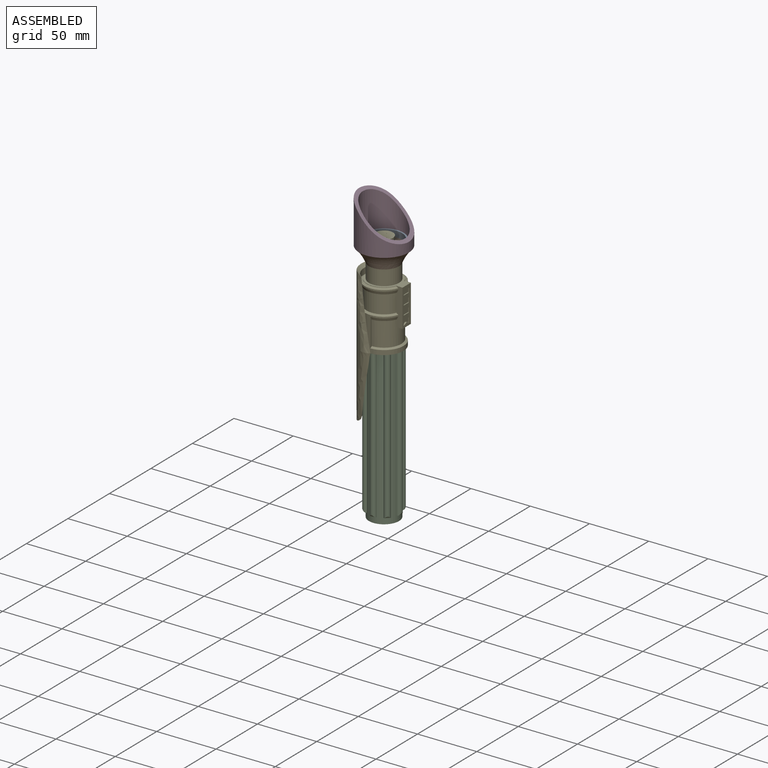
[diagram: assembled view]
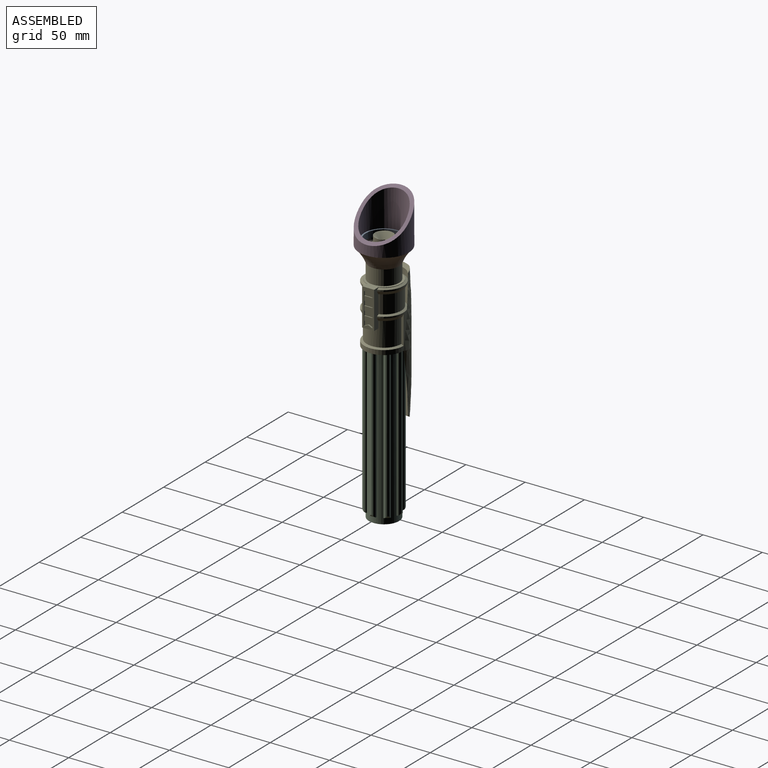
[diagram: assembled view, second angle]
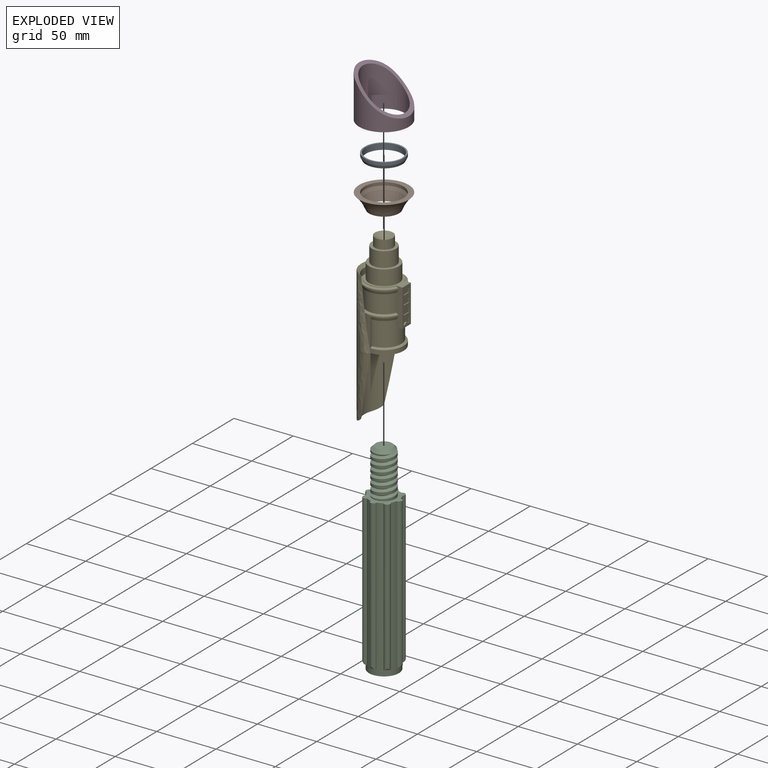
[diagram: exploded view]
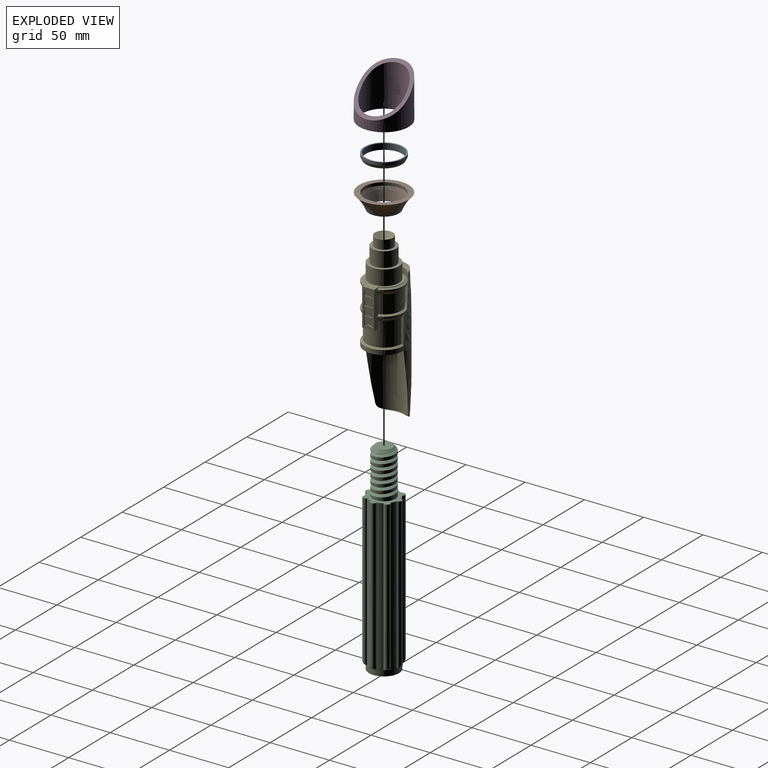
[diagram: exploded view, second angle]
ASSEMBLY  parts=5 mates=4
PART A: 4 faces, bbox 33x33x5.1 mm
  f0: plane 33.02x33.02mm, normal (0,0,1), area 126.7mm2, adj f1,f3
  f1: cylinder r=16.51mm len=33.02mm, axis (0,0,-1), area 263.5mm2, adj f0,f2
  f2: cone r=15.24mm half-angle=26.6deg, axis (0,0,1), area 283.3mm2, adj f1,f3
  f3: cylinder r=15.24mm len=30.48mm, axis (0,0,1), area 486.4mm2, adj f0,f2
PART B: 5 faces, bbox 41.9x83.8x12.7 mm
  f0: cone r=12.7mm half-angle=18.4deg, axis (0,0,1), area 705mm2, adj f1,f4
  f1: bspline ~83.82x41.91mm, area 1568.7mm2, adj f0,f2
  f2: plane 41.91x41.91mm, normal (0,0,1), area 523.2mm2, adj f1,f3
  f3: cylinder r=16.51mm len=33.02mm, axis (0,0,1), area 263.5mm2, adj f2,f4
  f4: cone r=15.24mm half-angle=26.6deg, axis (0,0,1), area 283.3mm2, adj f0,f3
PART C: 57 faces, bbox 30.5x30.5x172 mm
  f0: plane 1.98x1.8mm, normal (0,0,-1), area 0.2mm2, adj f26,f29,f45
  f1: plane 1.98x1.8mm, normal (0,0,-1), area 0.2mm2, adj f26,f30,f45
  f2: plane 2.54x0.26mm, normal (0,0,-1), area 0.2mm2, adj f26,f31,f41
  f3: plane 2.54x0.26mm, normal (0,0,-1), area 0.2mm2, adj f15,f26,f41
  f4: plane 1.98x1.8mm, normal (0,0,-1), area 0.2mm2, adj f16,f26,f43
  f5: plane 1.98x1.8mm, normal (0,0,-1), area 0.2mm2, adj f17,f26,f43
  f6: plane 2.54x0.26mm, normal (0,0,-1), area 0.2mm2, adj f18,f26,f47
  f7: plane 2.54x0.26mm, normal (0,0,-1), area 0.2mm2, adj f19,f26,f47
  f8: plane 1.98x1.8mm, normal (0,0,-1), area 0.2mm2, adj f20,f26,f49
  f9: plane 1.98x1.8mm, normal (0,0,-1), area 0.2mm2, adj f21,f26,f49
  f10: plane 2.54x0.26mm, normal (0,0,-1), area 0.2mm2, adj f22,f26,f51
  f11: plane 2.54x0.26mm, normal (0,0,-1), area 0.2mm2, adj f23,f26,f51
  f12: plane 1.98x1.8mm, normal (0,0,-1), area 0.2mm2, adj f24,f26,f55
  f13: plane 1.98x1.8mm, normal (0,0,-1), area 0.2mm2, adj f25,f26,f55
  f14: plane 2.54x0.26mm, normal (0,0,-1), area 0.2mm2, adj f26,f28,f53
  f15: plane 127x0.26mm, normal (-1,0,0), area 32.6mm2, adj f3,f26,f32,f40
  f16: plane 127x0.18mm, normal (0.71,0.71,0), area 32.6mm2, adj f4,f26,f32,f42
  f17: plane 127x0.18mm, normal (-0.71,-0.71,0), area 32.6mm2, adj f5,f26,f32,f42
  f18: plane 127x0.26mm, normal (0,1,0), area 32.6mm2, adj f6,f26,f32,f46
  f19: plane 127x0.26mm, normal (0,-1,0), area 32.6mm2, adj f7,f26,f32,f46
  f20: plane 127x0.18mm, normal (-0.71,0.71,0), area 32.6mm2, adj f8,f26,f32,f48
  f21: plane 127x0.18mm, normal (0.71,-0.71,0), area 32.6mm2, adj f9,f26,f32,f48
  f22: plane 127x0.26mm, normal (-1,0,0), area 32.6mm2, adj f10,f26,f32,f50
  f23: plane 127x0.26mm, normal (1,0,0), area 32.6mm2, adj f11,f26,f32,f50
  f24: plane 127x0.18mm, normal (-0.71,-0.71,0), area 32.6mm2, adj f12,f26,f32,f54
  f25: plane 127x0.18mm, normal (0.71,0.71,0), area 32.6mm2, adj f13,f26,f32,f54
  f26: cylinder r=12.7mm len=132.08mm, axis (0,0,-1), area 5343.2mm2, adj f0,f1,f2,f3,f4,f5,f6,f7
  f27: plane 127x0.26mm, normal (0,-1,0), area 32.6mm2, adj f26,f32,f33,f52
  f28: plane 127x0.26mm, normal (0,1,0), area 32.6mm2, adj f14,f26,f32,f52
  f29: plane 127x0.18mm, normal (0.71,-0.71,0), area 32.6mm2, adj f0,f26,f32,f44
  f30: plane 127x0.18mm, normal (-0.71,0.71,0), area 32.6mm2, adj f1,f26,f32,f44
  f31: plane 127x0.26mm, normal (1,0,0), area 32.6mm2, adj f2,f26,f32,f40
  f32: plane 30.48x30.48mm, normal (0,0,1), area 306.2mm2, adj f15,f16,f17,f18,f19,f20,f21,f22
  f33: plane 2.54x0.26mm, normal (0,0,-1), area 0.2mm2, adj f26,f27,f53
  f34: cylinder r=9.53mm len=35.56mm, axis (0,0,-1), area 900.3mm2, adj f32,f36,f37,f38,f39
  f35: plane 13.97x13.97mm, normal (0,0,1), area 153.3mm2, adj f36
  f36: cone r=6.99mm half-angle=45deg, axis (0,0,-1), area 139.1mm2, adj f34,f35,f38,f39
  f37: plane 2.67x2.31mm, normal (0,-1,0), area 3.1mm2, adj f34,f38,f39
  f38: bspline ~38.59x22mm, area 951.4mm2, adj f34,f36,f37,f39
  f39: bspline ~38.59x22mm, area 997.4mm2, adj f34,f36,f37,f38
  f40: cylinder r=2.54mm len=127mm, axis (0,0,-1), area 1003.3mm2, adj f15,f31,f32,f41
  f41: cylinder r=2.54mm len=5.08mm, axis (-1,0,0), area 10.1mm2, adj f2,f3,f40
  f42: cylinder r=2.54mm len=127mm, axis (0,0,-1), area 1003.3mm2, adj f16,f17,f32,f43
  f43: cylinder r=2.54mm len=5.39mm, axis (-0.71,-0.71,0), area 10.1mm2, adj f4,f5,f42
  f44: cylinder r=2.54mm len=127mm, axis (0,0,-1), area 1003.3mm2, adj f29,f30,f32,f45
  f45: cylinder r=2.54mm len=5.39mm, axis (-0.71,0.71,0), area 10.1mm2, adj f0,f1,f44
  f46: cylinder r=2.54mm len=127mm, axis (0,0,-1), area 1003.3mm2, adj f18,f19,f32,f47
  f47: cylinder r=2.54mm len=5.08mm, axis (0,-1,0), area 10.1mm2, adj f6,f7,f46
  f48: cylinder r=2.54mm len=127mm, axis (0,0,-1), area 1003.3mm2, adj f20,f21,f32,f49
  f49: cylinder r=2.54mm len=5.39mm, axis (0.71,-0.71,0), area 10.1mm2, adj f8,f9,f48
  f50: cylinder r=2.54mm len=127mm, axis (0,0,-1), area 1003.3mm2, adj f22,f23,f32,f51
  f51: cylinder r=2.54mm len=5.08mm, axis (1,0,0), area 10.1mm2, adj f10,f11,f50
  f52: cylinder r=2.54mm len=127mm, axis (0,0,-1), area 1003.3mm2, adj f27,f28,f32,f53
  f53: cylinder r=2.54mm len=5.08mm, axis (0,1,0), area 10.1mm2, adj f14,f33,f52
  f54: cylinder r=2.54mm len=127mm, axis (0,0,-1), area 1003.3mm2, adj f24,f25,f32,f55
  f55: cylinder r=2.54mm len=5.39mm, axis (0.71,0.71,0), area 10.1mm2, adj f12,f13,f54
  f56: plane 25.4x25.4mm, normal (0,0,-1), area 506.7mm2, adj f26
PART D: 4 faces, bbox 41.9x41.9x38.1 mm
  f0: cylinder r=20.96mm len=41.91mm, axis (0,0,-1), area 3041.2mm2, adj f2,f3
  f1: cylinder r=17.78mm len=36.48mm, axis (0,0,-1), area 2580.5mm2, adj f2,f3
  f2: plane 41.91x41.91mm, normal (0,0,-1), area 386.4mm2, adj f0,f1
  f3: extruded ~41.91x41.91mm, area 468mm2, adj f0,f1
PART E: 71 faces, bbox 39.1x39.7x146.1 mm
  f0: bspline ~40.22x22mm, area 987.9mm2, adj f1,f2,f18,f70
  f1: bspline ~41.06x22mm, area 1029mm2, adj f0,f2,f18,f70
  f2: cylinder r=9.53mm len=39.37mm, axis (0,0,-1), area 1286.2mm2, adj f0,f1,f18,f20,f70
  f3: plane 31.43x10.16mm, normal (1,0,0), area 135.3mm2, adj f21,f49,f50,f51,f52,f53,f62,f63
  f4: cylinder r=14.61mm len=29.21mm, axis (0,0,-1), area 899.1mm2, adj f5,f6,f15,f41,f42,f43,f44,f49
  f5: plane 14.37x11.32mm, normal (0,0,-1), area 11.8mm2, adj f4,f14,f42,f44,f50
  f6: plane 14.37x11.32mm, normal (0,0,-1), area 11.8mm2, adj f4,f7,f41,f43,f51
  f7: cone r=15.24mm half-angle=26.6deg, axis (0,0,1), area 56.1mm2, adj f6,f17,f41,f51
  f8: cylinder r=16.51mm len=24.51mm, axis (0,0,-1), area 38mm2, adj f12,f19,f37,f51
  f9: cylinder r=14.61mm len=29.21mm, axis (0,0,-1), area 26.6mm2, adj f12,f21,f45,f46
  f10: cylinder r=14.61mm len=29.21mm, axis (0,0,-1), area 1304.3mm2, adj f11,f13,f47,f48
  f11: plane 30.48x29.61mm, normal (0,0,-1), area 53.4mm2, adj f10,f19,f47,f48,f50,f51
  f12: cone r=16.51mm half-angle=63.4deg, axis (0,0,-1), area 186.6mm2, adj f8,f9,f16,f32,f45,f46,f50,f51
  f13: cone r=16.51mm half-angle=63.4deg, axis (0,0,-1), area 186.6mm2, adj f10,f17,f31,f47,f48,f50,f51
  f14: cone r=15.24mm half-angle=26.6deg, axis (0,0,1), area 56.1mm2, adj f5,f17,f42,f50
  f15: cone r=16.51mm half-angle=63.4deg, axis (0,0,-1), area 104.1mm2, adj f4,f17,f41,f42
  f16: cylinder r=16.51mm len=24.51mm, axis (0,0,-1), area 38mm2, adj f12,f19,f35,f50
  f17: cylinder r=16.51mm len=33.02mm, axis (0,0,-1), area 404.7mm2, adj f7,f13,f14,f15,f18,f35,f37,f41
  f18: plane 33.96x33.96mm, normal (0,0,-1), area 601.6mm2, adj f0,f1,f2,f17,f30
  f19: cone r=15.24mm half-angle=26.6deg, axis (0,0,1), area 253.9mm2, adj f8,f11,f16,f31,f50,f51
  f20: plane 19.05x19.05mm, normal (0,0,-1), area 285mm2, adj f2
  f21: plane 33.76x29.21mm, normal (0,0,1), area 212.2mm2, adj f3,f9,f22,f45,f46,f50,f51
  f22: cylinder r=12.7mm len=25.4mm, axis (0,0,1), area 1013.4mm2, adj f21,f25
  f23: plane 20.32x20.32mm, normal (0,0,1), area 141.9mm2, adj f24,f26
  f24: cylinder r=10.16mm len=20.32mm, axis (0,0,1), area 810.7mm2, adj f23,f25
  f25: plane 25.4x25.4mm, normal (0,0,1), area 182.4mm2, adj f22,f24
  f26: cylinder r=7.62mm len=15.24mm, axis (0,0,-1), area 364.8mm2, adj f23,f28
  f27: cylinder r=2.54mm len=25.84mm, axis (0,0,-1), area 412.3mm2, adj f28,f29
  f28: torus R=10.16mm, axis (0,0,1), area 254.8mm2, adj f26,f27
  f29: plane 5.08x5.08mm, normal (0,0,1), area 20.3mm2, adj f27
  f30: cylinder r=16.51mm len=50.86mm, axis (0,0,1), area 2151.5mm2, adj f18,f36,f38,f39
  f31: cylinder r=16.51mm len=31.34mm, axis (0,0,1), area 715.6mm2, adj f13,f19,f35,f37
  f32: cylinder r=16.51mm len=27.93mm, axis (0,0,1), area 163.6mm2, adj f12,f35,f37,f40
  f33: cylinder r=19.05mm len=114.3mm, axis (0,0,1), area 3558.5mm2, adj f34,f35,f36,f37,f39,f40
  f34: plane 18.83x2.51mm, normal (0,0,-1), area 32mm2, adj f33,f36,f38,f39
  f35: bspline ~59x16.86mm, area 461.3mm2, adj f16,f17,f31,f32,f33,f36,f40
  f36: bspline ~65.32x17.82mm, area 462.8mm2, adj f30,f33,f34,f35,f38
  f37: bspline ~59x16.86mm, area 461.3mm2, adj f8,f17,f31,f32,f33,f39,f40
  f38: cylinder r=7.62mm len=27.63mm, axis (0,1,0), area 21.3mm2, adj f30,f34,f36,f39
  f39: bspline ~65.32x17.83mm, area 462.8mm2, adj f30,f33,f34,f37,f38
  f40: cone r=19.05mm half-angle=45deg, axis (0,0,1), area 90.4mm2, adj f32,f33,f35,f37
  f41: plane 24.13x1.91mm, normal (1,0,0), area 41.8mm2, adj f4,f6,f7,f15,f17
  f42: plane 24.13x1.91mm, normal (1,0,0), area 41.8mm2, adj f4,f5,f14,f15,f17
  f43: plane 6.03x1.16mm, normal (-1,0,0), area 7mm2, adj f4,f6,f49,f51
  f44: plane 6.03x1.16mm, normal (-1,0,0), area 7mm2, adj f4,f5,f49,f50
  f45: plane 1.19x0.52mm, normal (-1,0,0), area 0.5mm2, adj f9,f12,f21,f50
  f46: plane 1.19x0.52mm, normal (-1,0,0), area 0.5mm2, adj f9,f12,f21,f51
  f47: plane 15.76x1.19mm, normal (-1,0,0), area 18.2mm2, adj f10,f11,f13,f50
  f48: plane 15.76x1.19mm, normal (-1,0,0), area 18.2mm2, adj f10,f11,f13,f51
  f49: plane 10.16x5.08mm, normal (0,0,-1), area 48.8mm2, adj f3,f4,f43,f44,f50,f51
  f50: plane 31.46x5.11mm, normal (0,-1,0), area 149.3mm2, adj f3,f5,f11,f12,f13,f14,f16,f17
  f51: plane 31.46x5.11mm, normal (0,1,0), area 149.3mm2, adj f3,f6,f7,f8,f11,f12,f13,f17
  f52: plane 3.56x1.59mm, normal (0,-0.41,0.91), area 4.9mm2, adj f3,f53,f55,f64
  f53: plane 3.56x1.59mm, normal (0,0.41,0.91), area 4.9mm2, adj f3,f52,f55,f62
  f54: plane 7.11x0.76mm, normal (0,0,-1), area 5.4mm2, adj f55,f62,f64,f69
  f55: plane 7.11x3.81mm, normal (1,0,0), area 21.4mm2, adj f52,f53,f54,f62,f64
  f56: plane 7.11x0.76mm, normal (0,0,1), area 5.4mm2, adj f58,f62,f64,f69
  f57: plane 7.11x0.76mm, normal (0,0,-1), area 5.4mm2, adj f58,f62,f64,f68
  f58: plane 7.11x3.81mm, normal (1,0,0), area 27.1mm2, adj f56,f57,f62,f64
  f59: plane 7.11x0.76mm, normal (0,0,-1), area 5.4mm2, adj f61,f62,f64,f67
  f60: plane 7.11x0.76mm, normal (0,0,1), area 5.4mm2, adj f61,f62,f64,f68
  f61: plane 7.11x3.81mm, normal (1,0,0), area 27.1mm2, adj f59,f60,f62,f64
  f62: plane 26.67x1.27mm, normal (0,-1,0), area 25.2mm2, adj f3,f53,f54,f55,f56,f57,f58,f59
  f63: plane 7.11x1.27mm, normal (0,0,-1), area 9mm2, adj f3,f62,f64,f66
  f64: plane 26.67x1.27mm, normal (0,1,0), area 25.2mm2, adj f3,f52,f54,f55,f56,f57,f58,f59
  f65: plane 7.11x0.76mm, normal (0,0,1), area 5.4mm2, adj f62,f64,f66,f67
  f66: plane 7.11x3.81mm, normal (1,0,0), area 27.1mm2, adj f62,f63,f64,f65
  f67: plane 7.11x3.81mm, normal (1,0,0), area 27.1mm2, adj f59,f62,f64,f65
  f68: plane 7.11x3.81mm, normal (1,0,0), area 27.1mm2, adj f57,f60,f62,f64
  f69: plane 7.11x3.81mm, normal (1,0,0), area 27.1mm2, adj f54,f56,f62,f64
  f70: plane 2.54x2.2mm, normal (0,1,0), area 2.8mm2, adj f0,f1,f2
PLACE A t=(-247.62,127.67,11.78)mm
PLACE B t=(-247.62,127.67,6.7)mm
PLACE C t=(-247.62,127.67,-119.03)mm fixed
PLACE D t=(-247.62,127.67,6.7)mm
PLACE E t=(-247.62,127.67,6.7)mm
MATE fastened A.f1 <-> B.f0  axis (0,0,1) through (-247.62,127.67,82.9)mm
MATE fastened C.f26 <-> E.f2  axis (0,0,1) through (-247.62,127.67,46.07)mm
MATE fastened B.f0 <-> D.f0  axis (0,0,1) through (-247.62,127.67,82.9)mm
MATE fastened E.f2 <-> B.f0  axis (0,0,1) through (-247.62,127.67,70.2)mm
